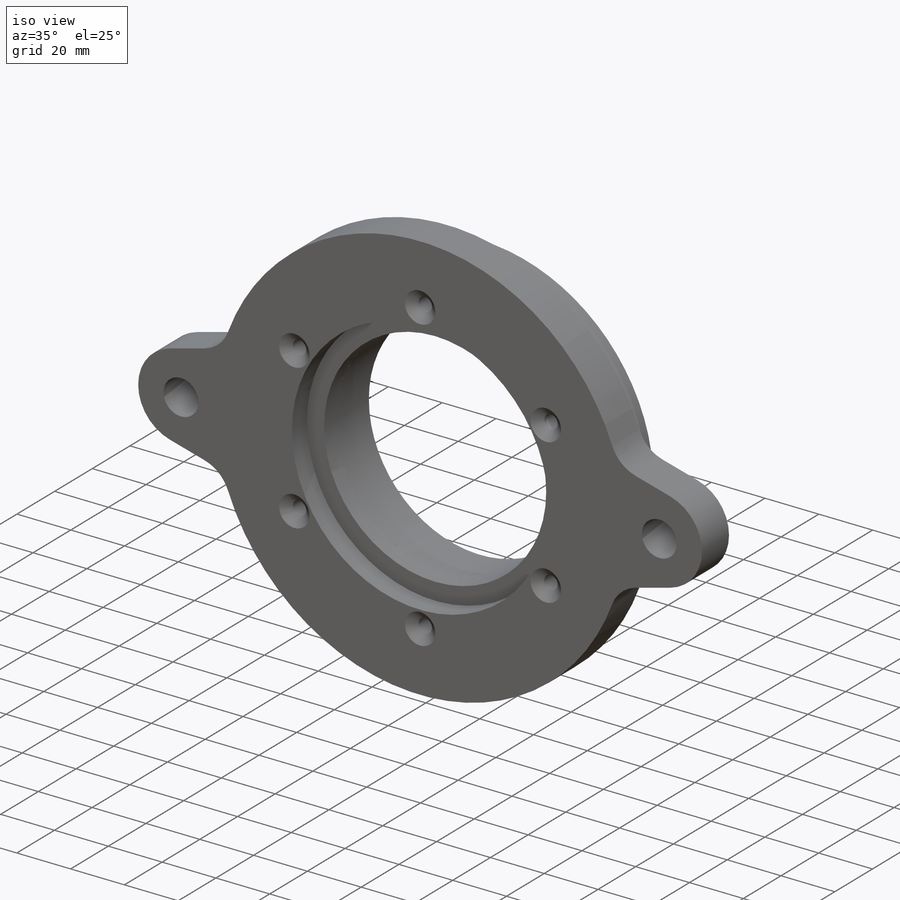
[diagram: iso view]
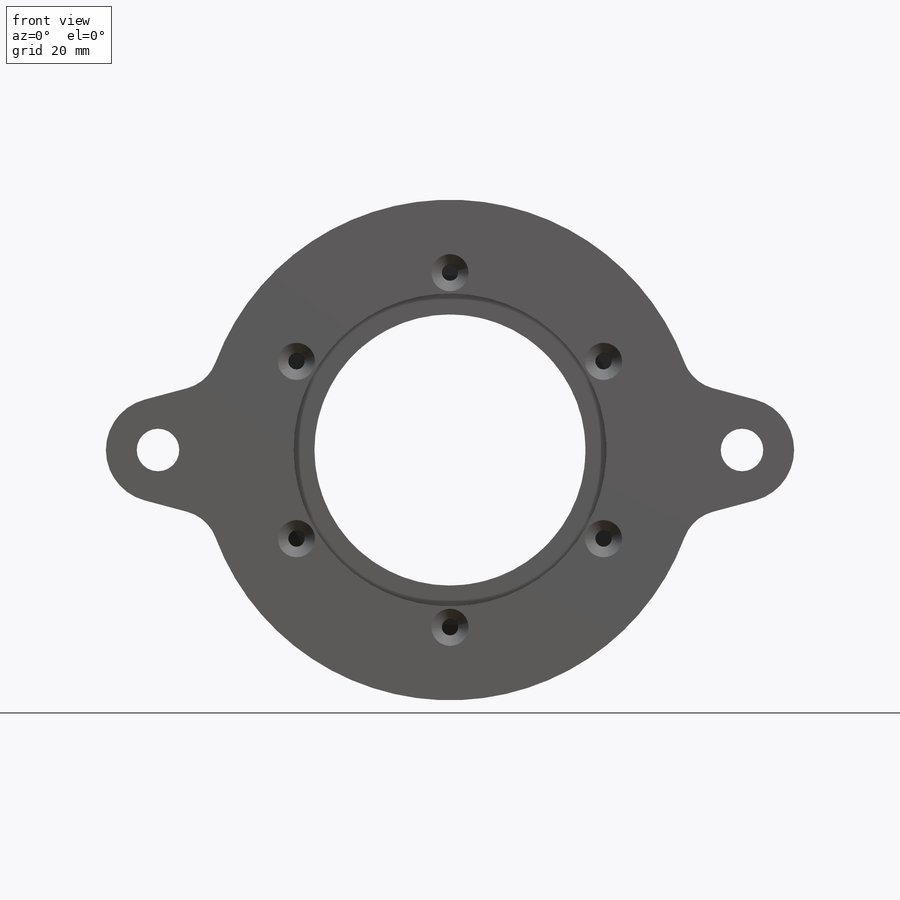
[diagram: front view]
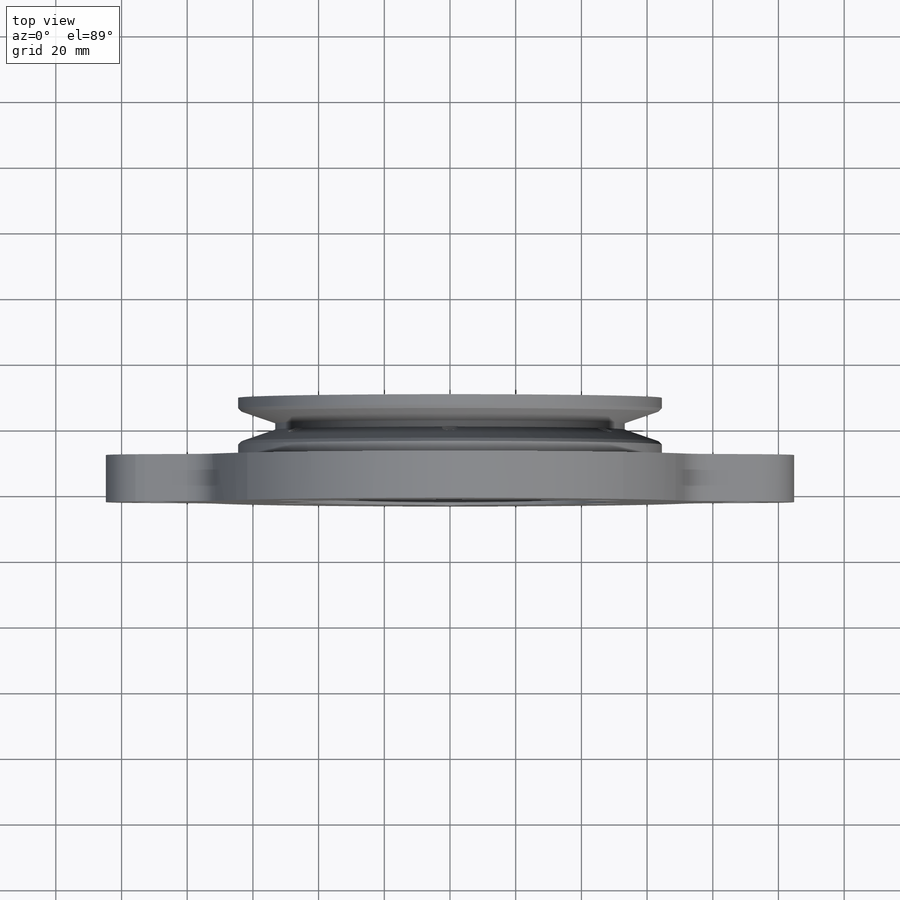
[diagram: top view]
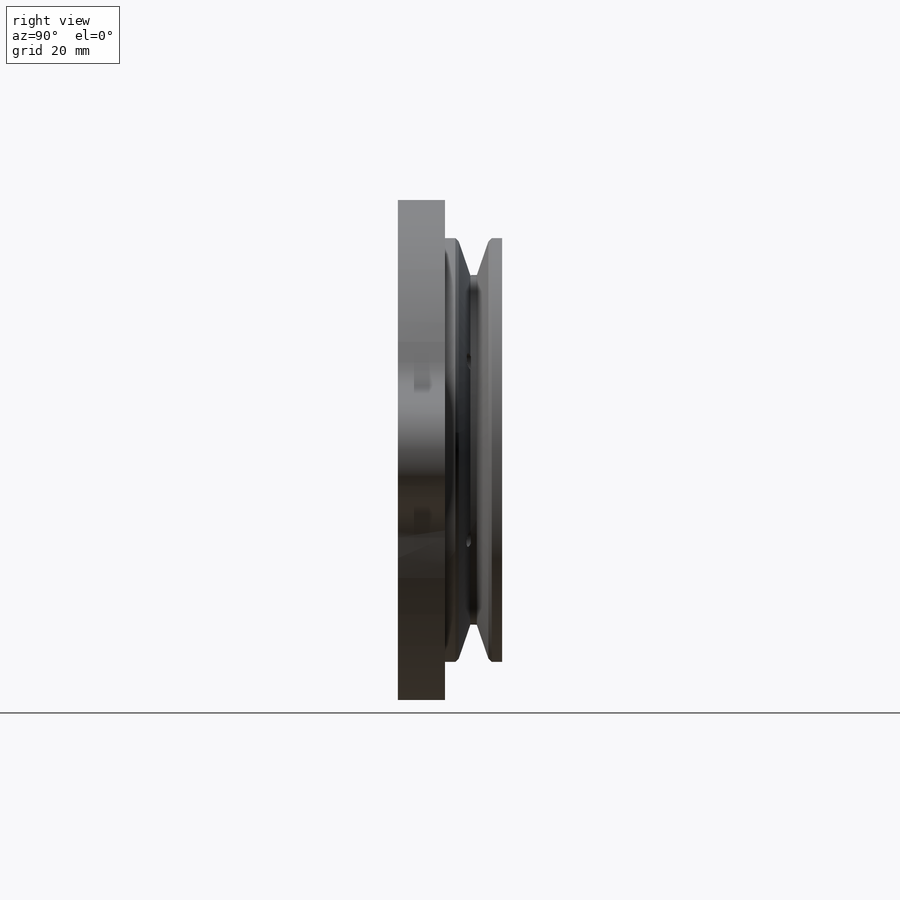
[diagram: right view]
SOLIDWORKS PART (.sldprt)
format: sldprt  version: not decoded by parser v0  size: 394,240 bytes
history: native  units: mm
features: sketch x4, extrude x2, material x1, revolve x1, mirror x1, fillet x1, plane x1, cut_extrude x1, chamfer x1, pattern_circular x1 (+13 scaffold rows collapsed)
feature tree (27):
  scaffold x13  (default folders/planes/origin — collapsed)
  material  "6061-T6 (SS)"
  sketch  "Sketch1"  dims[c1.D2=7.9375mm c1.D1=~30.45739mm c2.D1=38.0deg c2.D2=69.596mm c2.D3=133.096mm c2.D4=127.0mm c2.D5=~1.46631mm c3.D5=45.0deg c3.D6=1.016mm c3.D7=10.3124mm c3.D8=3.175mm c3.D9=82.55mm]
  revolve  "Revolve1"  Angle=360deg
  mirror  "Mirror1"
  sketch  "Sketch2"  dims[c1.D1=152.4mm c1.D2=95.25mm c1.D4=12.954mm c1.D5=31.75mm c1.D3=88.9mm c1.D6=~47.965179mm c2.D6=30.0deg c2.D7=~47.965179mm c3.D7=30.0deg]
  extrude  "Boss-Extrude1"  Depth=14.351mm
  fillet  "Fillet2"  Radius=12.7mm
  sketch  "Sketch3"
  extrude  "Boss-Extrude2"  Depth=6.35mm
  plane  "Plane1"  Offset=0mm
  sketch  "Sketch4"  dims[c1.D1=95.25mm c1.D2=4.9784mm c2.D1=6.35mm]
  cut_extrude  "Cut-Extrude1"  Depth=22.225mm
  chamfer  "Chamfer1"  Distance=3.175mm Angle=41deg
  pattern_circular  "CirPattern1"  Count=6 Angle=360deg
decode coverage: 10 of 12 modeling features carry decoded parameters
note: ~ marks probable driven/reference dimensions
note: suppression state not decoded; provenance and decode notes live in map.json
